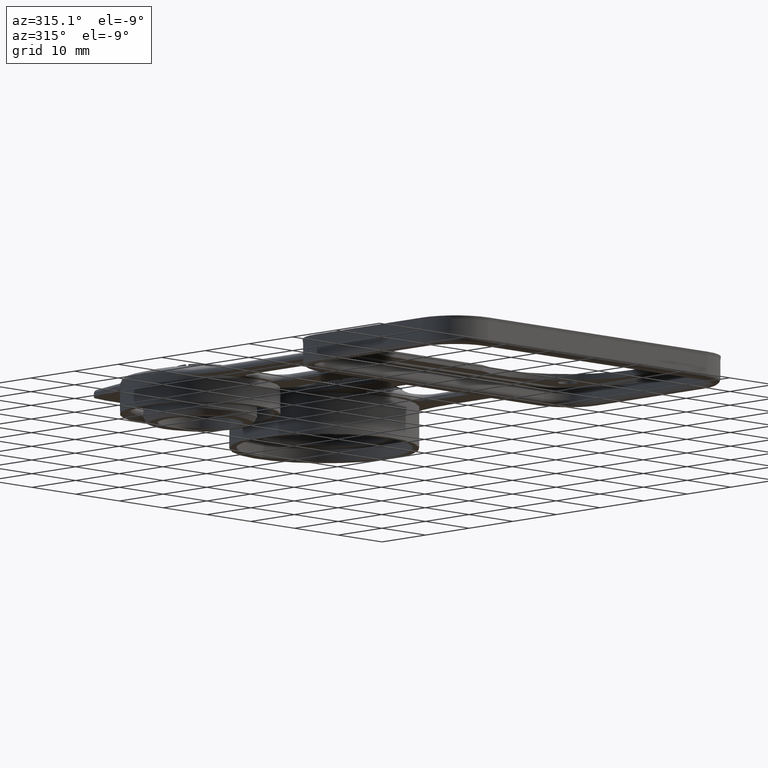
[diagram: clean part render]
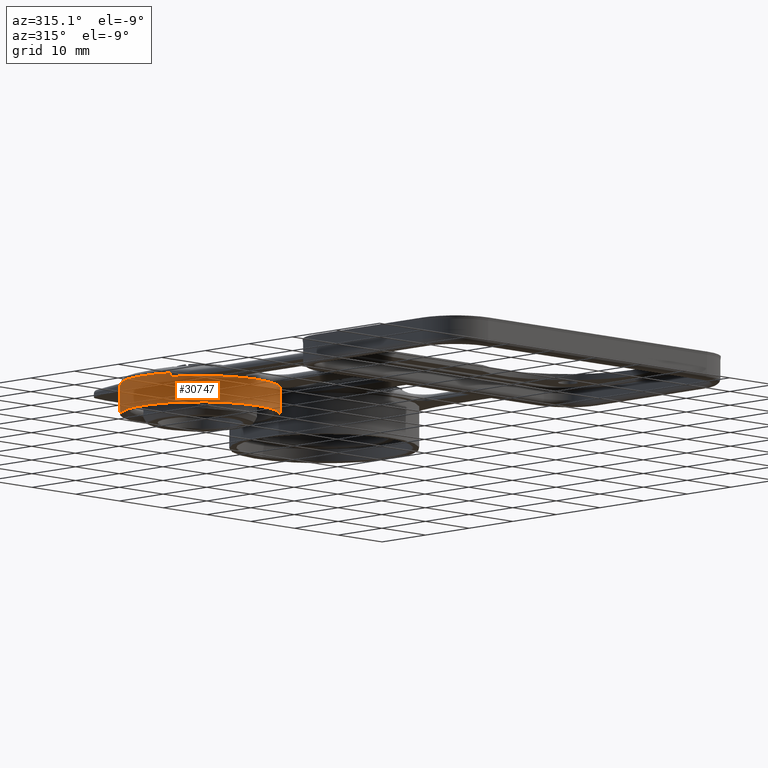
[diagram: same view with one face highlighted and labeled with its STEP entity id]
A machine part, auxiliary view. The second image highlights one B-rep face of the part: STEP entity #30747.
In plain terms, the highlighted cylindrical surface (partial cylindrical patch) has radius 13 mm, axis along (0, 0, -1).
Its self-contained STEP definition (entity closure, byte-faithful):
#7665=CARTESIAN_POINT('',(-1.54E1,5.6E1,-5.E-1));
#7666=DIRECTION('',(0.E0,0.E0,-1.E0));
#7667=DIRECTION('',(9.186046511628E-1,-3.951778015806E-1,0.E0));
#7668=AXIS2_PLACEMENT_3D('',#7665,#7666,#7667);
#10895=CARTESIAN_POINT('',(-1.54E1,5.6E1,1.091010722077E-1));
#10896=DIRECTION('',(0.E0,0.E0,-1.E0));
#10897=DIRECTION('',(-9.186046511628E-1,-3.951778015806E-1,0.E0));
#10898=AXIS2_PLACEMENT_3D('',#10895,#10896,#10897);
#10915=CARTESIAN_POINT('',(-2.734186046503E1,5.086268857924E1,
1.091010722208E-1));
#10946=DIRECTION('',(0.E0,0.E0,1.E0));
#10947=VECTOR('',#10946,4.909101072208E0);
#10948=CARTESIAN_POINT('',(-3.039344262295E0,5.197331529246E1,-4.8E0));
#10949=LINE('',#10948,#10947);
#10950=CARTESIAN_POINT('',(-1.54E1,5.6E1,-4.8E0));
#10951=DIRECTION('',(0.E0,0.E0,-1.E0));
#10952=DIRECTION('',(9.508196721311E-1,-3.097449775031E-1,0.E0));
#10953=AXIS2_PLACEMENT_3D('',#10950,#10951,#10952);
#10955=DIRECTION('',(-6.608645025507E-10,2.028645307009E-9,-1.E0));
#10956=VECTOR('',#10955,4.909101084087E0);
#10957=CARTESIAN_POINT('',(-3.039344259051E0,6.002668469758E1,
1.091010840872E-1));
#10958=LINE('',#10957,#10956);
#10959=CARTESIAN_POINT('',(-1.54E1,5.6E1,1.091010722077E-1));
#10960=DIRECTION('',(0.E0,0.E0,1.E0));
#10961=DIRECTION('',(9.508196721311E-1,3.097449775031E-1,0.E0));
#10962=AXIS2_PLACEMENT_3D('',#10959,#10960,#10961);
#10964=DIRECTION('',(-5.390706976907E-6,-6.038776172353E-6,-9.999999999672E-1));
#10965=VECTOR('',#10964,6.091010722869E-1);
#10966=CARTESIAN_POINT('',(-6.744713398410E0,6.569980113401E1,
1.091010722670E-1));
#10967=LINE('',#10966,#10965);
#10968=DIRECTION('',(-5.573838997733E-6,6.244325989916E-6,9.999999999650E-1));
#10969=VECTOR('',#10968,6.091010722924E-1);
#10970=CARTESIAN_POINT('',(-2.405528331810E1,6.569979745579E1,-5.E-1));
#10971=LINE('',#10970,#10969);
#10972=DIRECTION('',(-1.483376378732E-10,3.448301805230E-10,-1.E0));
#10973=VECTOR('',#10972,6.091010722208E-1);
#10974=CARTESIAN_POINT('',(-2.734186046503E1,5.086268857924E1,
1.091010722208E-1));
#10975=LINE('',#10974,#10973);
#10976=DIRECTION('',(-7.391728305295E-11,-1.718201532149E-10,-1.E0));
#10977=VECTOR('',#10976,6.091010722077E-1);
#10978=CARTESIAN_POINT('',(-3.458139534839E0,5.086268857956E1,
1.091010722077E-1));
#10979=LINE('',#10978,#10977);
#10980=CARTESIAN_POINT('',(-1.54E1,5.6E1,1.091010722077E-1));
#10981=DIRECTION('',(0.E0,0.E0,-1.E0));
#10982=DIRECTION('',(9.508196721311E-1,-3.097449775031E-1,0.E0));
#10983=AXIS2_PLACEMENT_3D('',#10980,#10981,#10982);
#12379=CARTESIAN_POINT('',(-3.458139534839E0,5.086268857956E1,
1.091010722077E-1));
#12527=CARTESIAN_POINT('',(-1.54E1,5.6E1,-5.E-1));
#12528=DIRECTION('',(0.E0,0.E0,-1.E0));
#12529=DIRECTION('',(-6.657910244696E-1,7.461382658300E-1,0.E0));
#12530=AXIS2_PLACEMENT_3D('',#12527,#12528,#12529);
#12546=CARTESIAN_POINT('',(-2.405528671314E1,6.569980125922E1,
1.091010722711E-1));
#16887=CARTESIAN_POINT('',(-3.458139534884E0,5.086268857945E1,-5.E-1));
#16889=VERTEX_POINT('',#16887);
#16892=CARTESIAN_POINT('',(-2.734186046512E1,5.086268857945E1,-5.E-1));
#16894=VERTEX_POINT('',#16892);
#17953=CARTESIAN_POINT('',(-2.405528331810E1,6.569979745579E1,-5.E-1));
#17955=VERTEX_POINT('',#17953);
#17958=CARTESIAN_POINT('',(-6.744716681896E0,6.569979745579E1,-5.E-1));
#17960=VERTEX_POINT('',#17958);
#17969=VERTEX_POINT('',#12546);
#17978=VERTEX_POINT('',#10915);
#17991=CARTESIAN_POINT('',(-6.744713398410E0,6.569980113401E1,
1.091010722670E-1));
#17992=VERTEX_POINT('',#17991);
#18319=CARTESIAN_POINT('',(-3.039344262295E0,5.197331529246E1,-4.8E0));
#18321=VERTEX_POINT('',#18319);
#18322=CARTESIAN_POINT('',(-3.039344262295E0,5.197331529246E1,
1.091010722077E-1));
#18323=VERTEX_POINT('',#18322);
#18328=VERTEX_POINT('',#12379);
#18332=CARTESIAN_POINT('',(-3.039344262295E0,6.002668470754E1,-4.8E0));
#18334=VERTEX_POINT('',#18332);
#18338=CARTESIAN_POINT('',(-3.039344259051E0,6.002668469758E1,
1.091010840872E-1));
#18339=VERTEX_POINT('',#18338);
#30720=CARTESIAN_POINT('',(-1.54E1,5.6E1,7.E-1));
#30721=DIRECTION('',(0.E0,0.E0,-1.E0));
#30722=DIRECTION('',(1.E0,0.E0,0.E0));
#30723=AXIS2_PLACEMENT_3D('',#30720,#30721,#30722);
#30724=CYLINDRICAL_SURFACE('',#30723,1.3E1);
#30726=ORIENTED_EDGE('',*,*,#30725,.F.);
#30728=ORIENTED_EDGE('',*,*,#30727,.T.);
#30730=ORIENTED_EDGE('',*,*,#30729,.F.);
#30731=ORIENTED_EDGE('',*,*,#30291,.T.);
#30733=ORIENTED_EDGE('',*,*,#30732,.T.);
#30735=ORIENTED_EDGE('',*,*,#30734,.F.);
#30737=ORIENTED_EDGE('',*,*,#30736,.T.);
#30738=ORIENTED_EDGE('',*,*,#30640,.F.);
#30739=ORIENTED_EDGE('',*,*,#30702,.T.);
#30740=ORIENTED_EDGE('',*,*,#28271,.F.);
#30742=ORIENTED_EDGE('',*,*,#30741,.F.);
#30744=ORIENTED_EDGE('',*,*,#30743,.F.);
#30745=EDGE_LOOP('',(#30726,#30728,#30730,#30731,#30733,#30735,#30737,#30738,
#30739,#30740,#30742,#30744));
#30746=FACE_OUTER_BOUND('',#30745,.F.);
#30747=ADVANCED_FACE('',(#30746),#30724,.T.);
#7669=CIRCLE('',#7668,1.3E1);
#10899=CIRCLE('',#10898,1.3E1);
#10954=CIRCLE('',#10953,1.3E1);
#10963=CIRCLE('',#10962,1.3E1);
#10984=CIRCLE('',#10983,1.3E1);
#12531=CIRCLE('',#12530,1.3E1);
#28271=EDGE_CURVE('',#16889,#16894,#7669,.T.);
#30291=EDGE_CURVE('',#18339,#17992,#10963,.T.);
#30640=EDGE_CURVE('',#17978,#17969,#10899,.T.);
#30702=EDGE_CURVE('',#17978,#16894,#10975,.T.);
#30725=EDGE_CURVE('',#18321,#18323,#10949,.T.);
#30727=EDGE_CURVE('',#18321,#18334,#10954,.T.);
#30729=EDGE_CURVE('',#18339,#18334,#10958,.T.);
#30732=EDGE_CURVE('',#17992,#17960,#10967,.T.);
#30734=EDGE_CURVE('',#17955,#17960,#12531,.T.);
#30736=EDGE_CURVE('',#17955,#17969,#10971,.T.);
#30741=EDGE_CURVE('',#18328,#16889,#10979,.T.);
#30743=EDGE_CURVE('',#18323,#18328,#10984,.T.);